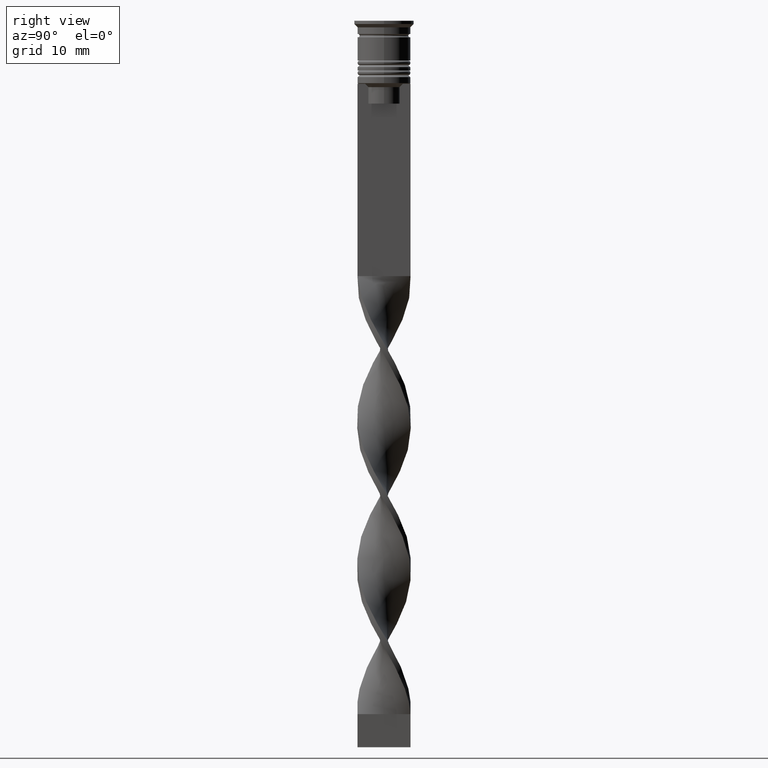
[diagram: clean part render]
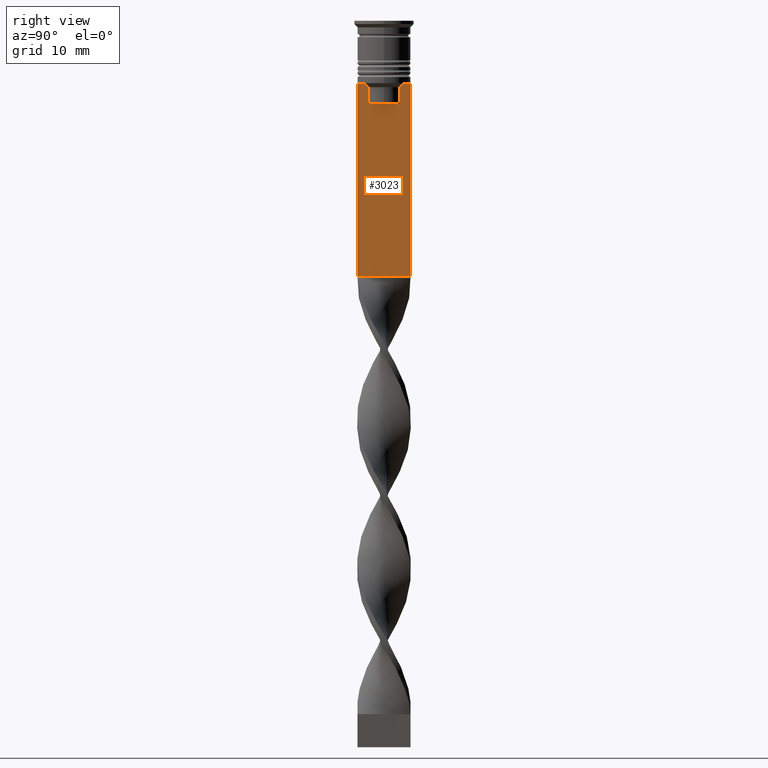
[diagram: same view with one face highlighted and labeled with its STEP entity id]
A machine part, right view. The second image highlights one B-rep face of the part: STEP entity #3023.
In plain terms, the highlighted planar face has unit normal (-1, 0, 0).
Its self-contained STEP definition (entity closure, byte-faithful):
#36 = CARTESIAN_POINT ( 'NONE',  ( 0.5000000000000000000, 3.867815921162741422, -9.500000000000000000 ) ) ;
#70 = VERTEX_POINT ( 'NONE', #490 ) ;
#89 = EDGE_LOOP ( 'NONE', ( #2371, #2547, #2076, #1857, #1436, #2880, #3525, #2648, #1186, #2056, #3201, #1567 ) ) ;
#106 = VECTOR ( 'NONE', #1898, 1000.000000000000000 ) ;
#160 = LINE ( 'NONE', #2154, #273 ) ;
#210 = VECTOR ( 'NONE', #2972, 1000.000000000000000 ) ;
#216 = B_SPLINE_CURVE_WITH_KNOTS ( 'NONE', 3,
 ( #2647, #2365, #2576, #990 ),
 .UNSPECIFIED., .F., .F.,
 ( 4, 4 ),
 ( 0.004956812174141191595, 0.005670477137898149653 ),
 .UNSPECIFIED. ) ;
#237 = EDGE_CURVE ( 'NONE', #798, #70, #1732, .T. ) ;
#273 = VECTOR ( 'NONE', #3324, 1000.000000000000000 ) ;
#279 = FACE_OUTER_BOUND ( 'NONE', #89, .T. ) ;
#305 = CARTESIAN_POINT ( 'NONE',  ( 0.5000000000000000000, -2.856571371417138572, -9.500000000000000000 ) ) ;
#470 = CARTESIAN_POINT ( 'NONE',  ( 0.5000000000000000000, -2.347338918861097135, -10.00000000000000000 ) ) ;
#475 = LINE ( 'NONE', #1625, #508 ) ;
#478 = EDGE_CURVE ( 'NONE', #2500, #1234, #1473, .T. ) ;
#490 = CARTESIAN_POINT ( 'NONE',  ( 0.5000000000000000000, -4.000000000000000000, -9.500000000000000000 ) ) ;
#508 = VECTOR ( 'NONE', #1331, 1000.000000000000000 ) ;
#682 = VERTEX_POINT ( 'NONE', #2373 ) ;
#748 = EDGE_CURVE ( 'NONE', #1234, #3379, #1329, .T. ) ;
#770 = DIRECTION ( 'NONE',  ( 0.000000000000000000, 1.000000000000000000, 0.000000000000000000 ) ) ;
#775 = EDGE_CURVE ( 'NONE', #3518, #1915, #2119, .T. ) ;
#776 = B_SPLINE_CURVE_WITH_KNOTS ( 'NONE', 3,
 ( #470, #1967, #842, #305 ),
 .UNSPECIFIED., .F., .F.,
 ( 4, 4 ),
 ( 0.01178336557230038467, 0.01249758354768160280 ),
 .UNSPECIFIED. ) ;
#798 = VERTEX_POINT ( 'NONE', #3253 ) ;
#825 = LINE ( 'NONE', #1075, #3410 ) ;
#842 = CARTESIAN_POINT ( 'NONE',  ( 0.5000000000000000000, -2.687095498514037839, -9.666937905752043037 ) ) ;
#891 = DIRECTION ( 'NONE',  ( -1.000000000000000000, 0.000000000000000000, 0.000000000000000000 ) ) ;
#899 = DIRECTION ( 'NONE',  ( 0.000000000000000000, -1.000000000000000000, 0.000000000000000000 ) ) ;
#990 = CARTESIAN_POINT ( 'NONE',  ( 0.5000000000000000000, 2.347338918861097135, -10.00000000000000000 ) ) ;
#1075 = CARTESIAN_POINT ( 'NONE',  ( 0.5000000000000000000, 4.000000000000000000, -1.437742251701450202 ) ) ;
#1125 = EDGE_CURVE ( 'NONE', #1192, #2500, #216, .T. ) ;
#1167 = CARTESIAN_POINT ( 'NONE',  ( 0.5000000000000000000, 2.347338918861097135, -12.50000000000000000 ) ) ;
#1186 = ORIENTED_EDGE ( 'NONE', *, *, #1711, .T. ) ;
#1192 = VERTEX_POINT ( 'NONE', #1535 ) ;
#1234 = VERTEX_POINT ( 'NONE', #1167 ) ;
#1307 = DIRECTION ( 'NONE',  ( -0.000000000000000000, -0.000000000000000000, 1.000000000000000000 ) ) ;
#1311 = CARTESIAN_POINT ( 'NONE',  ( 0.5000000000000000000, 2.399999999999996803, -12.50000000000000000 ) ) ;
#1326 = VERTEX_POINT ( 'NONE', #3565 ) ;
#1329 = LINE ( 'NONE', #1311, #106 ) ;
#1331 = DIRECTION ( 'NONE',  ( 0.000000000000000000, 0.000000000000000000, -1.000000000000000000 ) ) ;
#1436 = ORIENTED_EDGE ( 'NONE', *, *, #2463, .T. ) ;
#1437 = CARTESIAN_POINT ( 'NONE',  ( 0.5000000000000000000, -4.000000000000000000, -9.500000000000000000 ) ) ;
#1473 = LINE ( 'NONE', #1786, #2538 ) ;
#1535 = CARTESIAN_POINT ( 'NONE',  ( 0.5000000000000000000, 2.856571371417138572, -9.500000000000000000 ) ) ;
#1567 = ORIENTED_EDGE ( 'NONE', *, *, #775, .T. ) ;
#1619 = CARTESIAN_POINT ( 'NONE',  ( 0.5000000000000000000, -2.347338918861097135, 0.000000000000000000 ) ) ;
#1625 = CARTESIAN_POINT ( 'NONE',  ( 0.5000000000000000000, -4.000000000000000000, -1.437742251701450202 ) ) ;
#1663 = DIRECTION ( 'NONE',  ( 0.000000000000000000, 0.000000000000000000, -1.000000000000000000 ) ) ;
#1711 = EDGE_CURVE ( 'NONE', #70, #2349, #475, .T. ) ;
#1732 = LINE ( 'NONE', #1437, #2889 ) ;
#1775 = CARTESIAN_POINT ( 'NONE',  ( 0.5000000000000000000, 4.000000000000000000, -9.500000000000000000 ) ) ;
#1779 = EDGE_CURVE ( 'NONE', #1915, #1192, #160, .T. ) ;
#1786 = CARTESIAN_POINT ( 'NONE',  ( 0.5000000000000000000, 2.347338918861097135, 0.000000000000000000 ) ) ;
#1819 = AXIS2_PLACEMENT_3D ( 'NONE', #3366, #891, #2016 ) ;
#1821 = EDGE_CURVE ( 'NONE', #2349, #2528, #3541, .T. ) ;
#1857 = ORIENTED_EDGE ( 'NONE', *, *, #748, .T. ) ;
#1898 = DIRECTION ( 'NONE',  ( 0.000000000000000000, -1.000000000000000000, 0.000000000000000000 ) ) ;
#1915 = VERTEX_POINT ( 'NONE', #36 ) ;
#1936 = VECTOR ( 'NONE', #2791, 1000.000000000000000 ) ;
#1950 = LINE ( 'NONE', #3067, #1936 ) ;
#1967 = CARTESIAN_POINT ( 'NONE',  ( 0.5000000000000000000, -2.517408374291112416, -9.833662228483172285 ) ) ;
#2016 = DIRECTION ( 'NONE',  ( 0.000000000000000000, 0.000000000000000000, 1.000000000000000000 ) ) ;
#2056 = ORIENTED_EDGE ( 'NONE', *, *, #1821, .T. ) ;
#2076 = ORIENTED_EDGE ( 'NONE', *, *, #478, .T. ) ;
#2115 = CARTESIAN_POINT ( 'NONE',  ( 0.5000000000000000000, 2.347338918861097135, -10.00000000000000000 ) ) ;
#2119 = LINE ( 'NONE', #2135, #210 ) ;
#2135 = CARTESIAN_POINT ( 'NONE',  ( 0.5000000000000000000, -4.000000000000000000, -9.500000000000000000 ) ) ;
#2154 = CARTESIAN_POINT ( 'NONE',  ( 0.5000000000000000000, -4.000000000000000000, -9.500000000000000000 ) ) ;
#2234 = CARTESIAN_POINT ( 'NONE',  ( 0.5000000000000000000, -2.347338918861097135, -12.50000000000000000 ) ) ;
#2349 = VERTEX_POINT ( 'NONE', #2425 ) ;
#2365 = CARTESIAN_POINT ( 'NONE',  ( 0.5000000000000000000, 2.687094542495898075, -9.666938847453439010 ) ) ;
#2371 = ORIENTED_EDGE ( 'NONE', *, *, #1779, .T. ) ;
#2373 = CARTESIAN_POINT ( 'NONE',  ( 0.5000000000000000000, -2.347338918861097135, -10.00000000000000000 ) ) ;
#2425 = CARTESIAN_POINT ( 'NONE',  ( 0.5000000000000000000, -4.000000000000000000, -38.50000000000000000 ) ) ;
#2463 = EDGE_CURVE ( 'NONE', #3379, #682, #3537, .T. ) ;
#2482 = CARTESIAN_POINT ( 'NONE',  ( 0.5000000000000000000, 4.000000000000000000, -38.50000000000000000 ) ) ;
#2500 = VERTEX_POINT ( 'NONE', #2115 ) ;
#2528 = VERTEX_POINT ( 'NONE', #2482 ) ;
#2538 = VECTOR ( 'NONE', #3217, 1000.000000000000000 ) ;
#2547 = ORIENTED_EDGE ( 'NONE', *, *, #1125, .T. ) ;
#2555 = EDGE_CURVE ( 'NONE', #682, #1326, #776, .T. ) ;
#2576 = CARTESIAN_POINT ( 'NONE',  ( 0.5000000000000000000, 2.517407211010872281, -9.833663366238582171 ) ) ;
#2643 = EDGE_CURVE ( 'NONE', #1326, #798, #1950, .T. ) ;
#2647 = CARTESIAN_POINT ( 'NONE',  ( 0.5000000000000000000, 2.856571371417138572, -9.500000000000000000 ) ) ;
#2648 = ORIENTED_EDGE ( 'NONE', *, *, #237, .T. ) ;
#2791 = DIRECTION ( 'NONE',  ( 0.000000000000000000, -1.000000000000000000, 0.000000000000000000 ) ) ;
#2880 = ORIENTED_EDGE ( 'NONE', *, *, #2555, .T. ) ;
#2889 = VECTOR ( 'NONE', #899, 1000.000000000000000 ) ;
#2972 = DIRECTION ( 'NONE',  ( 0.000000000000000000, -1.000000000000000000, 0.000000000000000000 ) ) ;
#3003 = VECTOR ( 'NONE', #1307, 1000.000000000000000 ) ;
#3023 = ADVANCED_FACE ( 'NONE', ( #279 ), #3419, .F. ) ;
#3056 = VECTOR ( 'NONE', #770, 1000.000000000000000 ) ;
#3067 = CARTESIAN_POINT ( 'NONE',  ( 0.5000000000000000000, -4.000000000000000000, -9.500000000000000000 ) ) ;
#3201 = ORIENTED_EDGE ( 'NONE', *, *, #3354, .F. ) ;
#3217 = DIRECTION ( 'NONE',  ( 0.000000000000000000, 0.000000000000000000, -1.000000000000000000 ) ) ;
#3253 = CARTESIAN_POINT ( 'NONE',  ( 0.5000000000000000000, -3.867815921162741422, -9.500000000000000000 ) ) ;
#3310 = CARTESIAN_POINT ( 'NONE',  ( 0.5000000000000000000, -4.000000000000000000, -38.50000000000000000 ) ) ;
#3324 = DIRECTION ( 'NONE',  ( 0.000000000000000000, -1.000000000000000000, 0.000000000000000000 ) ) ;
#3354 = EDGE_CURVE ( 'NONE', #3518, #2528, #825, .T. ) ;
#3366 = CARTESIAN_POINT ( 'NONE',  ( 0.5000000000000000000, -4.000000000000000000, -1.437742251701450202 ) ) ;
#3379 = VERTEX_POINT ( 'NONE', #2234 ) ;
#3410 = VECTOR ( 'NONE', #1663, 1000.000000000000000 ) ;
#3419 = PLANE ( 'NONE',  #1819 ) ;
#3518 = VERTEX_POINT ( 'NONE', #1775 ) ;
#3525 = ORIENTED_EDGE ( 'NONE', *, *, #2643, .T. ) ;
#3537 = LINE ( 'NONE', #1619, #3003 ) ;
#3541 = LINE ( 'NONE', #3310, #3056 ) ;
#3565 = CARTESIAN_POINT ( 'NONE',  ( 0.5000000000000000000, -2.856571371417138572, -9.500000000000000000 ) ) ;